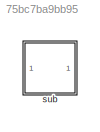
MODEL slx_75bc7ba9bb95
KIND library
CONFIG AbsTol = auto
CONFIG EnableMultiTasking = off
CONFIG FixedStep = auto
CONFIG MaxStep = auto
CONFIG MinStep = auto
CONFIG RelTol = 1e-3
CONFIG SampleTimeConstraint = Unconstrained
CONFIG SolverName = VariableStepAuto
CONFIG StartTime = 0.0
CONFIG StopTime = 10.0
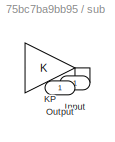
BLOCK [SubSystem] sub
BLOCK [Inport] sub/Input
BLOCK [Gain] sub/KP
BLOCK [Outport] sub/Output
LINE sub/Input:1 -> sub/KP:1
LINE sub/KP:1 -> sub/Output:1
